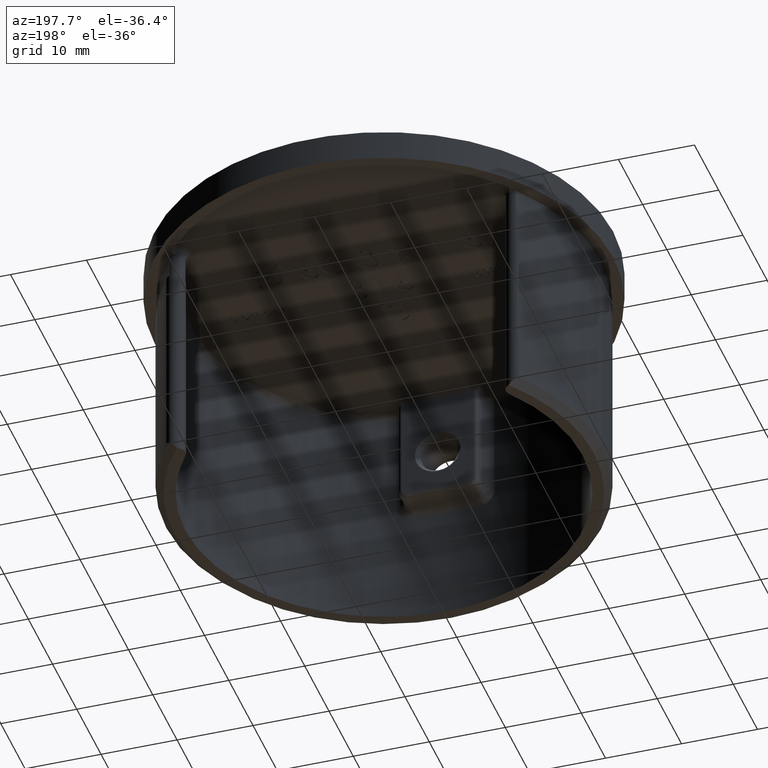
[diagram: clean part render]
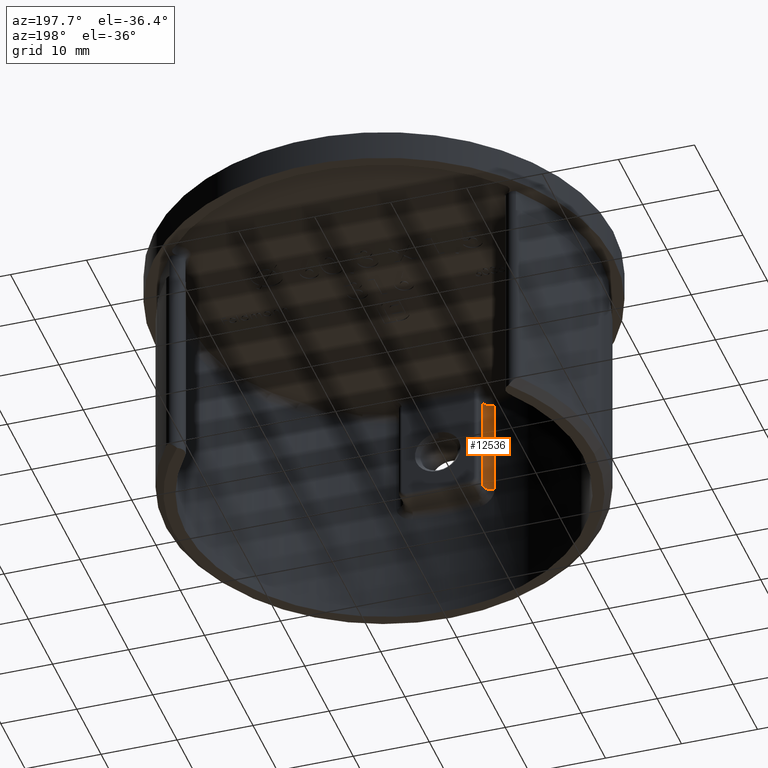
[diagram: same view with one face highlighted and labeled with its STEP entity id]
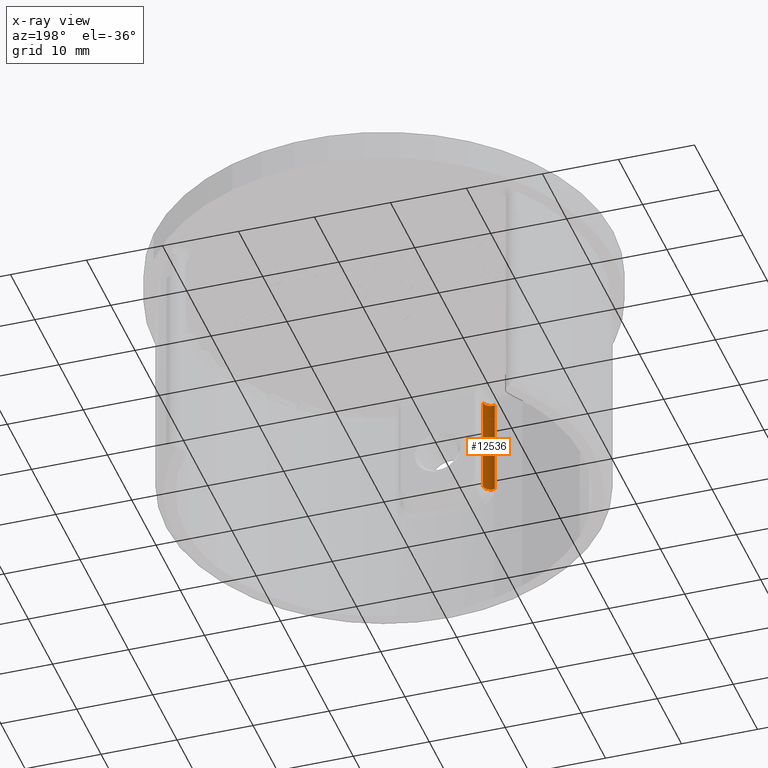
[diagram: x-ray of the same camera — body ghosted, the highlighted face saturated]
A machine part, auxiliary view. The second image highlights one B-rep face of the part: STEP entity #12536.
The next image is the same camera in x-ray: the body ghosted, the highlighted face saturated — about 0% of this face is hidden behind the body in this view.
In plain terms, the highlighted cylindrical surface (edge-blend (fillet) strip) has radius 1 mm, axis along (-0, -0, 1).
Its self-contained STEP definition (entity closure, byte-faithful):
#283 = CARTESIAN_POINT ( 'NONE',  ( -5.250000000000000888, -24.36103446079414780, 0.000000000000000000 ) ) ;
#352 = AXIS2_PLACEMENT_3D ( 'NONE', #6873, #16702, #2769 ) ;
#557 = EDGE_CURVE ( 'NONE', #1218, #7920, #1894, .T. ) ;
#1218 = VERTEX_POINT ( 'NONE', #10828 ) ;
#1894 = CIRCLE ( 'NONE', #21909, 1.000000000000000000 ) ;
#2769 = DIRECTION ( 'NONE',  ( 1.000000000000000000, 0.000000000000000000, 0.000000000000000000 ) ) ;
#3118 = ORIENTED_EDGE ( 'NONE', *, *, #557, .T. ) ;
#3334 = AXIS2_PLACEMENT_3D ( 'NONE', #23740, #21861, #8259 ) ;
#3614 = LINE ( 'NONE', #18469, #18288 ) ;
#3662 = ORIENTED_EDGE ( 'NONE', *, *, #12236, .F. ) ;
#3795 = EDGE_CURVE ( 'NONE', #23879, #7920, #10719, .T. ) ;
#4247 = DIRECTION ( 'NONE',  ( -0.000000000000000000, -0.000000000000000000, 1.000000000000000000 ) ) ;
#5856 = VERTEX_POINT ( 'NONE', #10457 ) ;
#6343 = CIRCLE ( 'NONE', #352, 1.000000000000000000 ) ;
#6873 = CARTESIAN_POINT ( 'NONE',  ( -6.250000000000000888, -24.36103446079414780, -12.99999999999999822 ) ) ;
#7920 = VERTEX_POINT ( 'NONE', #283 ) ;
#8259 = DIRECTION ( 'NONE',  ( 1.000000000000000000, 0.000000000000000000, 0.000000000000000000 ) ) ;
#10457 = CARTESIAN_POINT ( 'NONE',  ( -6.498508946322068880, -25.32966406162094941, -12.99999999999999822 ) ) ;
#10719 = LINE ( 'NONE', #19545, #19260 ) ;
#10828 = CARTESIAN_POINT ( 'NONE',  ( -6.498508946322070656, -25.32966406162095296, 0.000000000000000000 ) ) ;
#10978 = CYLINDRICAL_SURFACE ( 'NONE', #3334, 1.000000000000000000 ) ;
#12236 = EDGE_CURVE ( 'NONE', #1218, #5856, #3614, .T. ) ;
#12299 = DIRECTION ( 'NONE',  ( 1.000000000000000000, 0.000000000000000000, 0.000000000000000000 ) ) ;
#12536 = ADVANCED_FACE ( 'NONE', ( #19210 ), #10978, .F. ) ;
#12683 = DIRECTION ( 'NONE',  ( 0.000000000000000000, 0.000000000000000000, -1.000000000000000000 ) ) ;
#12695 = ORIENTED_EDGE ( 'NONE', *, *, #12993, .F. ) ;
#12993 = EDGE_CURVE ( 'NONE', #5856, #23879, #6343, .T. ) ;
#15874 = EDGE_LOOP ( 'NONE', ( #3662, #3118, #17414, #12695 ) ) ;
#16126 = CARTESIAN_POINT ( 'NONE',  ( -6.250000000000000888, -24.36103446079414780, 0.000000000000000000 ) ) ;
#16702 = DIRECTION ( 'NONE',  ( -0.000000000000000000, 0.000000000000000000, 1.000000000000000000 ) ) ;
#16924 = CARTESIAN_POINT ( 'NONE',  ( -5.250000000000000888, -24.36103446079414780, -12.99999999999999822 ) ) ;
#17414 = ORIENTED_EDGE ( 'NONE', *, *, #3795, .F. ) ;
#18288 = VECTOR ( 'NONE', #12683, 1000.000000000000000 ) ;
#18469 = CARTESIAN_POINT ( 'NONE',  ( -6.498508946322070656, -25.32966406162095296, -30.00000000000000000 ) ) ;
#19210 = FACE_OUTER_BOUND ( 'NONE', #15874, .T. ) ;
#19260 = VECTOR ( 'NONE', #21355, 1000.000000000000000 ) ;
#19545 = CARTESIAN_POINT ( 'NONE',  ( -5.250000000000000888, -24.36103446079414780, -13.99999999999999822 ) ) ;
#21355 = DIRECTION ( 'NONE',  ( 0.000000000000000000, 0.000000000000000000, 1.000000000000000000 ) ) ;
#21861 = DIRECTION ( 'NONE',  ( -0.000000000000000000, -0.000000000000000000, 1.000000000000000000 ) ) ;
#21909 = AXIS2_PLACEMENT_3D ( 'NONE', #16126, #4247, #12299 ) ;
#23740 = CARTESIAN_POINT ( 'NONE',  ( -6.250000000000000888, -24.36103446079414780, -30.00000000000000000 ) ) ;
#23879 = VERTEX_POINT ( 'NONE', #16924 ) ;